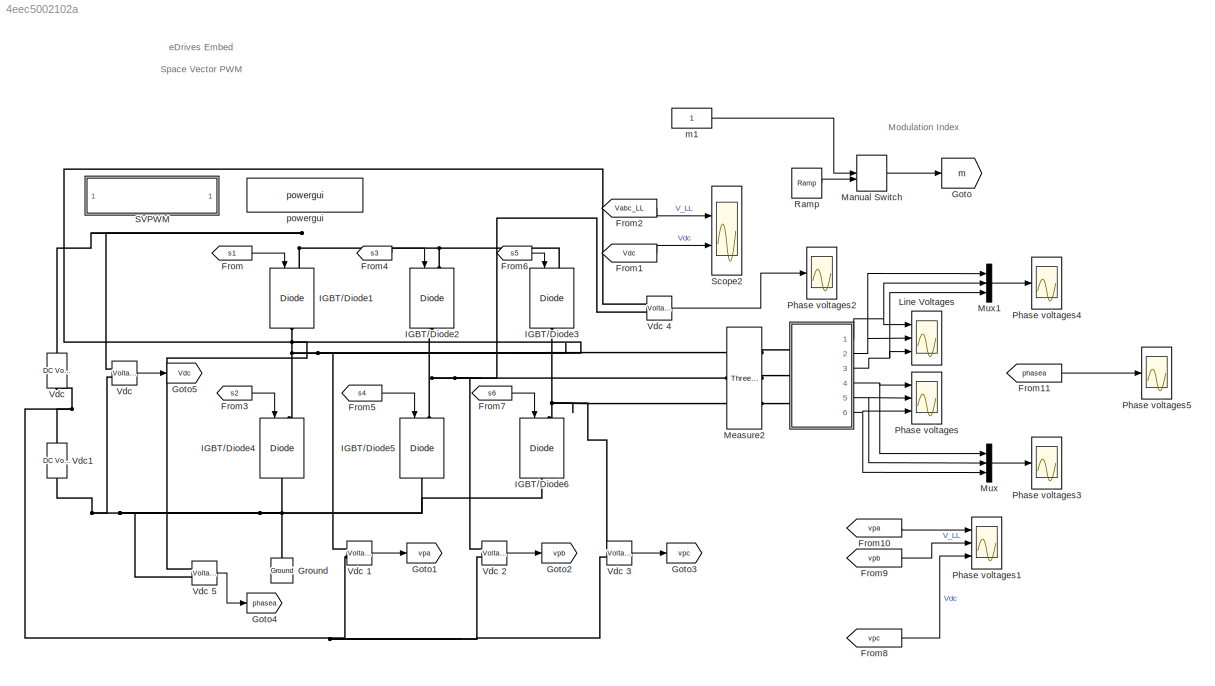
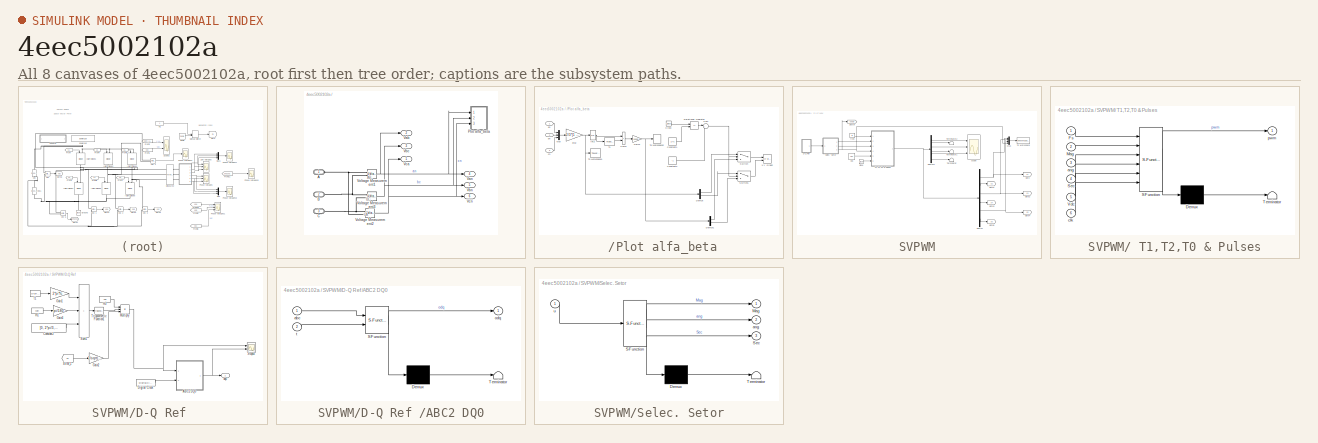
[diagram: thumbnail index - all 8 canvases of the model, root first then tree order]
MODEL slx_4eec5002102a
KIND model
CONFIG AbsTol = auto
CONFIG EnableMultiTasking = on
CONFIG FixedStep = auto
CONFIG InitFcn = Vdc=400; \nTs=2e-6; %Simulation sampling time\nfc = 50;\nfs = 10000;\nshift = 0; \nm = 1;\n\n
CONFIG MaxStep = 1e-5
CONFIG MinStep = auto
CONFIG RelTol = 1e-3
CONFIG SampleTimeConstraint = Unconstrained
CONFIG SolverName = ode45
CONFIG StartTime = 0.0
CONFIG StopFcn = clc\nfigure(1);\nplot(a(:,1),a(:,2),'-b',b(:,1),b(:,2),'-r');\naxis equal;\ngrid;\ntitle('Space Vector PWM');\n \n\n
CONFIG StopTime = 5/fc
WORKSPACE source: mxarray member
WORKSPACE Param: Simulink.Parameter (value not decoded)
WORKSPACE sw_array = [0 0 0 1 0 0 1 1 0 1 1 1 ... (126 elements, 3x7x6)]
BLOCK [SubSystem]  
  Ports = [0, 6, 0, 0, 0, 3]
  RequestExecContextInheritance = off
BLOCK [PMIOPort]  /A
  Side = Left
BLOCK [PMIOPort]  /B
  Port = 2
  Side = Left
BLOCK [PMIOPort]  /C
  Port = 3
  Side = Left
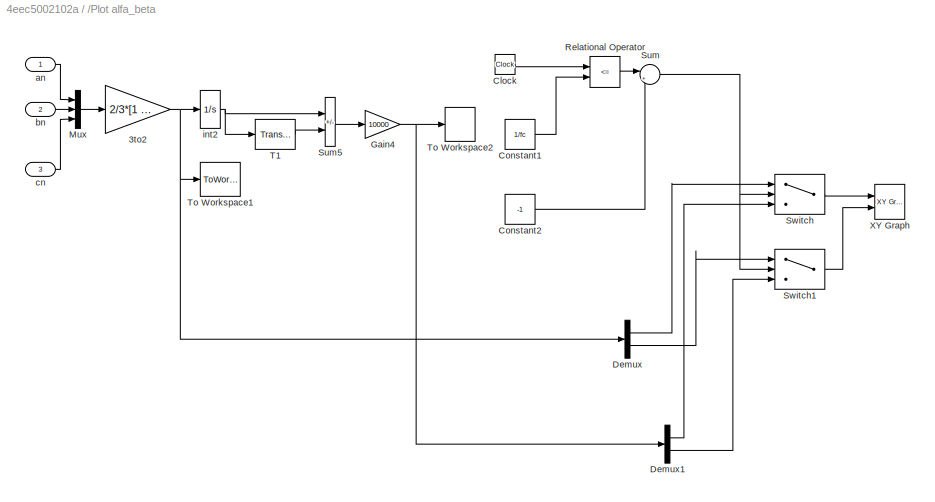
BLOCK [SubSystem]  /Plot alfa_beta
  Ports = [3]
  RequestExecContextInheritance = off
BLOCK [Gain]  /Plot alfa_beta/3to2
  Gain = 2/3*[1 -0.5 -0.5;0 sqrt(3)/2 -sqrt(3)/2]
  Multiplication = Matrix(K*u)
  OutDataTypeStr = Inherit: Same as input
  ParamDataTypeStr = Inherit: Same as input
  SaturateOnIntegerOverflow = on
BLOCK [Clock]  /Plot alfa_beta/Clock
BLOCK [Constant]  /Plot alfa_beta/Constant1
  Value = 1/fc
BLOCK [Constant]  /Plot alfa_beta/Constant2
  Value = -1
BLOCK [Demux]  /Plot alfa_beta/Demux
  Outputs = 2
  Ports = [1, 2]
BLOCK [Demux]  /Plot alfa_beta/Demux1
  Outputs = 2
  Ports = [1, 2]
BLOCK [Gain]  /Plot alfa_beta/Gain4
  Gain = 10000
  OutDataTypeStr = Inherit: Same as input
  ParamDataTypeStr = Inherit: Same as input
  SaturateOnIntegerOverflow = on
BLOCK [Mux]  /Plot alfa_beta/Mux
  DisplayOption = bar
  Inputs = 3
  Ports = [3, 1]
BLOCK [RelationalOperator]  /Plot alfa_beta/Relational Operator
  InputSameDT = off
  Operator = <=
  OutDataTypeStr = boolean
  Ports = [2, 1]
BLOCK [Sum]  /Plot alfa_beta/Sum
  Inputs = |++
  Ports = [2, 1]
BLOCK [Sum]  /Plot alfa_beta/Sum5
  IconShape = rectangular
  InputSameDT = on
  Inputs = +-
  OutDataTypeStr = Inherit: Same as first input
  Ports = [2, 1]
  SaturateOnIntegerOverflow = on
BLOCK [Switch]  /Plot alfa_beta/Switch
  InputSameDT = off
  SaturateOnIntegerOverflow = off
BLOCK [Switch]  /Plot alfa_beta/Switch1
  InputSameDT = off
  SaturateOnIntegerOverflow = off
BLOCK [TransportDelay]  /Plot alfa_beta/T1
  BufferSize = 2048
  DelayTime = 1/10000
  Ports = [1, 1]
BLOCK [ToWorkspace]  /Plot alfa_beta/To Workspace1
  Decimation = 2
  MaxDataPoints = inf
  Ports = [1]
  SampleTime = -1
  VariableName = a
BLOCK [ToWorkspace]  /Plot alfa_beta/To Workspace2
  Decimation = 2
  MaxDataPoints = inf
  Ports = [1]
  SampleTime = -1
  VariableName = b
BLOCK [Reference]  /Plot alfa_beta/XY Graph  REF=simulink/Sinks/XY Graph
  Ports = [2]
  SourceBlock = simulink/Sinks/XY Graph
  SourceProductBaseCode = SL
  SourceType = XY scope.
BLOCK [Inport]  /Plot alfa_beta/an
BLOCK [Inport]  /Plot alfa_beta/bn
  Port = 2
BLOCK [Inport]  /Plot alfa_beta/cn
  Port = 3
BLOCK [Integrator]  /Plot alfa_beta/int2
  Ports = [1, 1]
BLOCK [Outport]  /Vab
  Port = 2
BLOCK [Outport]  /Van
  Port = 4
BLOCK [Outport]  /Vbc
  Port = 3
BLOCK [Outport]  /Vbn
  Port = 5
BLOCK [Outport]  /Vca
BLOCK [Outport]  /Vcn
  Port = 6
BLOCK [Reference]  /Voltage Measurement1  REF=powerlib/Measurements/Voltage Measurement
  Ports = [0, 1, 0, 0, 0, 2]
  SourceBlock = powerlib/Measurements/Voltage Measurement
  SourceProductBaseCode = PS
  SourceType = Voltage Measurement
BLOCK [Reference]  /Voltage Measurement2  REF=powerlib/Measurements/Voltage Measurement
  Ports = [0, 1, 0, 0, 0, 2]
  SourceBlock = powerlib/Measurements/Voltage Measurement
  SourceProductBaseCode = PS
  SourceType = Voltage Measurement
BLOCK [Reference]  /Voltage Measurement3  REF=powerlib/Measurements/Voltage Measurement
  Ports = [0, 1, 0, 0, 0, 2]
  SourceBlock = powerlib/Measurements/Voltage Measurement
  SourceProductBaseCode = PS
  SourceType = Voltage Measurement
BLOCK [From] From
  CloseFcn = tagdialog Close
  GotoTag = s1
  TagVisibility = global
BLOCK [From] From1
  GotoTag = Vdc
  TagVisibility = global
BLOCK [From] From10
  GotoTag = vpa
  TagVisibility = global
BLOCK [From] From11
  GotoTag = phasea
  TagVisibility = global
BLOCK [From] From2
  GotoTag = Vabc_LL
  TagVisibility = global
BLOCK [From] From3
  CloseFcn = tagdialog Close
  GotoTag = s2
  TagVisibility = global
BLOCK [From] From4
  CloseFcn = tagdialog Close
  GotoTag = s3
  TagVisibility = global
BLOCK [From] From5
  CloseFcn = tagdialog Close
  GotoTag = s4
  TagVisibility = global
BLOCK [From] From6
  CloseFcn = tagdialog Close
  GotoTag = s5
  TagVisibility = global
BLOCK [From] From7
  CloseFcn = tagdialog Close
  GotoTag = s6
  TagVisibility = global
BLOCK [From] From8
  GotoTag = vpc
  TagVisibility = global
BLOCK [From] From9
  GotoTag = vpb
  TagVisibility = global
BLOCK [Goto] Goto
  GotoTag = m
  TagVisibility = global
BLOCK [Goto] Goto1
  GotoTag = vpa
  TagVisibility = global
BLOCK [Goto] Goto2
  GotoTag = vpb
  TagVisibility = global
BLOCK [Goto] Goto3
  GotoTag = vpc
  TagVisibility = global
BLOCK [Goto] Goto4
  GotoTag = phasea
  TagVisibility = global
BLOCK [Goto] Goto5
  GotoTag = Vdc
  TagVisibility = global
BLOCK [Reference] Ground  REF=powerlib/Elements/Ground
  NameLocation = right
  Ports = [0, 0, 0, 0, 0, 1]
  SourceBlock = powerlib/Elements/Ground
  SourceProductBaseCode = PS
  SourceType = Ground
BLOCK [Reference] IGBT//Diode1  REF=powerlib/Power
Electronics/IGBT//Diode
  NameLocation = left
  Ports = [1, 0, 0, 0, 0, 1, 1]
  SourceBlock = powerlib/Power\nElectronics/IGBT//Diode
  SourceProductBaseCode = PS
  SourceType = IGBT/Diode
BLOCK [Reference] IGBT//Diode2  REF=powerlib/Power
Electronics/IGBT//Diode
  NameLocation = left
  Ports = [1, 0, 0, 0, 0, 1, 1]
  SourceBlock = powerlib/Power\nElectronics/IGBT//Diode
  SourceProductBaseCode = PS
  SourceType = IGBT/Diode
BLOCK [Reference] IGBT//Diode3  REF=powerlib/Power
Electronics/IGBT//Diode
  NameLocation = left
  Ports = [1, 0, 0, 0, 0, 1, 1]
  SourceBlock = powerlib/Power\nElectronics/IGBT//Diode
  SourceProductBaseCode = PS
  SourceType = IGBT/Diode
BLOCK [Reference] IGBT//Diode4  REF=powerlib/Power
Electronics/IGBT//Diode
  NameLocation = left
  Ports = [1, 0, 0, 0, 0, 1, 1]
  SourceBlock = powerlib/Power\nElectronics/IGBT//Diode
  SourceProductBaseCode = PS
  SourceType = IGBT/Diode
BLOCK [Reference] IGBT//Diode5  REF=powerlib/Power
Electronics/IGBT//Diode
  NameLocation = left
  Ports = [1, 0, 0, 0, 0, 1, 1]
  SourceBlock = powerlib/Power\nElectronics/IGBT//Diode
  SourceProductBaseCode = PS
  SourceType = IGBT/Diode
BLOCK [Reference] IGBT//Diode6  REF=powerlib/Power
Electronics/IGBT//Diode
  NameLocation = left
  Ports = [1, 0, 0, 0, 0, 1, 1]
  SourceBlock = powerlib/Power\nElectronics/IGBT//Diode
  SourceProductBaseCode = PS
  SourceType = IGBT/Diode
BLOCK [Scope] Line Voltages
  Floating = off
  NameLocation = top
  NumInputPorts = 3
  Ports = [3]
  ScopeSpecificationString = Simulink.scopes.TimeScopeBlockCfg('CurrentConfiguration', extmgr.ConfigurationSet(extmgr.Configuration('Core','General UI',true),extmgr.Configuration('Core','Source UI',true),extmgr.Configuration('Sources','WiredSimulink',true,'DataLogging',true,'DataLoggingVariableName','SV','DataLoggingSaveFormat','StructureWithTime','DataLoggingMaxPoints','5000000','SampleTime','2e-6','DataLoggingLimitDataPoint...<+3125ch>
BLOCK [ManualSwitch] Manual Switch
  CurrentSetting = 0
BLOCK [Reference] Measure2  REF=powerlib/Measurements/Three-Phase
V-I Measurement
  Ports = [0, 0, 0, 0, 0, 3, 3]
  SourceBlock = powerlib/Measurements/Three-Phase\nV-I Measurement
  SourceProductBaseCode = PS
  SourceType = Three-Phase VI Measurement
BLOCK [Mux] Mux
  DisplayOption = bar
  Inputs = 3
  Ports = [3, 1]
BLOCK [Mux] Mux1
  DisplayOption = bar
  Inputs = 3
  Ports = [3, 1]
BLOCK [Scope] Phase voltages
  Floating = off
  NumInputPorts = 3
  Ports = [3]
  ScopeSpecificationString = Simulink.scopes.TimeScopeBlockCfg('CurrentConfiguration', extmgr.ConfigurationSet(extmgr.Configuration('Core','General UI',true),extmgr.Configuration('Core','Source UI',true),extmgr.Configuration('Sources','WiredSimulink',true,'DataLogging',true,'DataLoggingVariableName','V_fase','DataLoggingSaveFormat','StructureWithTime','DataLoggingMaxPoints','5000000','SampleTime','2e-6','DataLoggingLimitDataP...<+3132ch>
BLOCK [Scope] Phase voltages1
  Floating = off
  NumInputPorts = 3
  Ports = [3]
  ScopeSpecificationString = C++SS(StrPVP('Location','[5, 57, 1367, 726]'),StrPVP('Open','off'),MxPVP('AxesTitles',54,'struct(''axes1'',''%<SignalLabel>'',''axes2'',''%<SignalLabel>'',''axes3'',''%<SignalLabel>'')'),MxPVP('ScopeGraphics',57,'struct(''FigureColor'',''[0.5 0.5 0.5]'',''AxesColor'',''[0 0 0]'',''AxesTickColor'',''[1 1 1]'',''LineColors'',''[1 1 0;1 0 1;0 1 1;1 0 0;0 1 0;0 0 1]'',''LineStyles'',''-|-|-|-|-|-'',''...<+452ch>
BLOCK [Scope] Phase voltages2
  Floating = off
  NumInputPorts = 1
  Ports = [1]
  ScopeSpecificationString = C++SS(StrPVP('Location','[5, 48, 1367, 762]'),StrPVP('Open','off'),StrPVP('ZoomMode','xonly'),MxPVP('AxesTitles',54,'struct(''axes1'',''%<SignalLabel>'')'),MxPVP('ScopeGraphics',57,'struct(''FigureColor'',''[0.5 0.5 0.5]'',''AxesColor'',''[0 0 0]'',''AxesTickColor'',''[1 1 1]'',''LineColors'',''[1 1 0;1 0 1;0 1 1;1 0 0;0 1 0;0 0 1]'',''LineStyles'',''-|-|-|-|-|-'',''LineWidths'',''[0.5 0.5 0.5 0.5...<+399ch>
BLOCK [Scope] Phase voltages3
  Floating = off
  NumInputPorts = 1
  Ports = [1]
  ScopeSpecificationString = C++SS(StrPVP('Location','[5, 48, 1367, 762]'),StrPVP('Open','off'),StrPVP('ZoomMode','xonly'),MxPVP('AxesTitles',54,'struct(''axes1'',''%<SignalLabel>'')'),MxPVP('ScopeGraphics',57,'struct(''FigureColor'',''[0.5 0.5 0.5]'',''AxesColor'',''[0 0 0]'',''AxesTickColor'',''[1 1 1]'',''LineColors'',''[1 1 0;1 0 1;0 1 1;1 0 0;0 1 0;0 0 1]'',''LineStyles'',''-|-|-|-|-|-'',''LineWidths'',''[0.5 0.5 0.5 0.5...<+403ch>
BLOCK [Scope] Phase voltages4
  Floating = off
  NumInputPorts = 1
  Ports = [1]
  ScopeSpecificationString = Simulink.scopes.TimeScopeBlockCfg('CurrentConfiguration', extmgr.ConfigurationSet(extmgr.Configuration('Core','General UI',true),extmgr.Configuration('Core','Source UI',true),extmgr.Configuration('Sources','WiredSimulink',true,'DataLogging',true,'DataLoggingVariableName','V_fase3','DataLoggingSaveFormat','StructureWithTime','DataLoggingMaxPoints','5000000','SampleTime','2e-6','DataLoggingLimitData...<+1848ch>
BLOCK [Scope] Phase voltages5
  Floating = off
  NumInputPorts = 1
  Ports = [1]
  ScopeSpecificationString = C++SS(StrPVP('Location','[5, 48, 1367, 762]'),StrPVP('Open','off'),MxPVP('AxesTitles',54,'struct(''axes1'',''%<SignalLabel>'')'),MxPVP('ScopeGraphics',57,'struct(''FigureColor'',''[0.5 0.5 0.5]'',''AxesColor'',''[0 0 0]'',''AxesTickColor'',''[1 1 1]'',''LineColors'',''[1 1 0;1 0 1;0 1 1;1 0 0;0 1 0;0 0 1]'',''LineStyles'',''-|-|-|-|-|-'',''LineWidths'',''[0.5 0.5 0.5 0.5 0.5 0.5]'',''MarkerStyles'...<+376ch>
BLOCK [Reference] Ramp  REF=simulink/Sources/Ramp
  Ports = [0, 1]
  SourceBlock = simulink/Sources/Ramp
  SourceProductBaseCode = SL
  SourceType = Ramp
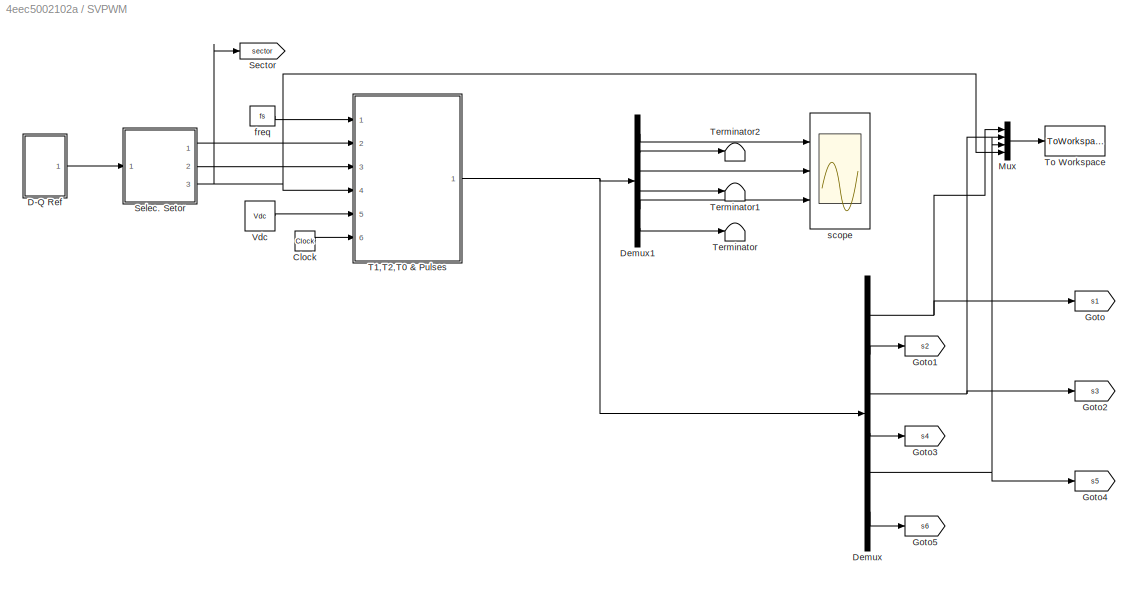
BLOCK [SubSystem] SVPWM
  Ports = []
  RequestExecContextInheritance = off
BLOCK [SubSystem] SVPWM/ T1,T2,T0 & Pulses
  ErrorFcn = Stateflow.Translate.translate
  PermitHierarchicalResolution = ExplicitOnly
  Ports = [6, 1]
  RequestExecContextInheritance = off
  SFBlockType = MATLAB Function
  TreatAsAtomicUnit = on
BLOCK [Demux] SVPWM/ T1,T2,T0 & Pulses/ Demux 
  Outputs = 1
  Ports = [1, 1]
BLOCK [S-Function] SVPWM/ T1,T2,T0 & Pulses/ SFunction 
  EnableBusSupport = on
  FunctionName = sf_sfun
  PortCounts = [6 2]
  Ports = [6, 2]
  SFcnIsStateOwnerBlock = off
  SFunctionDeploymentMode = off
  Tag = Stateflow S-Function 2
BLOCK [Terminator] SVPWM/ T1,T2,T0 & Pulses/ Terminator 
BLOCK [Inport] SVPWM/ T1,T2,T0 & Pulses/Fs
BLOCK [Inport] SVPWM/ T1,T2,T0 & Pulses/Mag
  Port = 2
BLOCK [Inport] SVPWM/ T1,T2,T0 & Pulses/Sec
  Port = 4
BLOCK [Inport] SVPWM/ T1,T2,T0 & Pulses/Vdc
  Port = 5
BLOCK [Inport] SVPWM/ T1,T2,T0 & Pulses/ang
  Port = 3
BLOCK [Inport] SVPWM/ T1,T2,T0 & Pulses/clk
  Port = 6
BLOCK [Outport] SVPWM/ T1,T2,T0 & Pulses/pwm
BLOCK [Constant] SVPWM/ freq
  NameLocation = top
  Value = fs
BLOCK [Clock] SVPWM/Clock
  Decimation = 100
BLOCK [SubSystem] SVPWM/D-Q Ref 
  Ports = [0, 1]
  RequestExecContextInheritance = off
BLOCK [SubSystem] SVPWM/D-Q Ref /ABC2 DQ0
  ErrorFcn = Stateflow.Translate.translate
  PermitHierarchicalResolution = ExplicitOnly
  Ports = [2, 1]
  RequestExecContextInheritance = off
  SFBlockType = MATLAB Function
  TreatAsAtomicUnit = on
BLOCK [Demux] SVPWM/D-Q Ref /ABC2 DQ0/ Demux 
  Outputs = 1
  Ports = [1, 1]
BLOCK [S-Function] SVPWM/D-Q Ref /ABC2 DQ0/ SFunction 
  EnableBusSupport = on
  FunctionName = sf_sfun
  PortCounts = [2 2]
  Ports = [2, 2]
  SFcnIsStateOwnerBlock = off
  SFunctionDeploymentMode = off
  Tag = Stateflow S-Function 4
BLOCK [Terminator] SVPWM/D-Q Ref /ABC2 DQ0/ Terminator 
BLOCK [Inport] SVPWM/D-Q Ref /ABC2 DQ0/abc
BLOCK [Outport] SVPWM/D-Q Ref /ABC2 DQ0/odq
BLOCK [Inport] SVPWM/D-Q Ref /ABC2 DQ0/t
  Port = 2
BLOCK [Constant] SVPWM/D-Q Ref /Constant2
  SampleTime = -1
  Value = [0, 2*pi/3, 4*pi/3]
BLOCK [DigitalClock] SVPWM/D-Q Ref /Digital Clock
BLOCK [Gain] SVPWM/D-Q Ref /Gain1
  Gain = 2*pi*fc
  OutDataTypeStr = Inherit: Same as input
  ParamDataTypeStr = Inherit: Same as input
  SaturateOnIntegerOverflow = on
BLOCK [Gain] SVPWM/D-Q Ref /Gain2
  Gain = 1/sqrt(3)
  OutDataTypeStr = Inherit: Same as input
  ParamDataTypeStr = Inherit: Same as input
  SaturateOnIntegerOverflow = on
BLOCK [Gain] SVPWM/D-Q Ref /Gain3
  Gain = pi/180
  OutDataTypeStr = Inherit: Same as input
  ParamDataTypeStr = Inherit: Same as input
  SaturateOnIntegerOverflow = on
BLOCK [Product] SVPWM/D-Q Ref /Multiply
  Inputs = ***
  Ports = [3, 1]
BLOCK [From] SVPWM/D-Q Ref /SVM_1
  GotoTag = m
  TagVisibility = global
BLOCK [Scope] SVPWM/D-Q Ref /Scope2
  Floating = off
  NumInputPorts = 2
  Ports = [2]
  ScopeSpecificationString = C++SS(StrPVP('Location','[5, 49, 1367, 727]'),StrPVP('Open','off'),StrPVP('ZoomMode','xonly'),MxPVP('AxesTitles',54,'struct(''axes1'',''%<SignalLabel>'',''axes2'',''%<SignalLabel>'')'),MxPVP('ScopeGraphics',57,'struct(''FigureColor'',''[0.5 0.5 0.5]'',''AxesColor'',''[0 0 0]'',''AxesTickColor'',''[1 1 1]'',''LineColors'',''[1 1 0;1 0 1;0 1 1;1 0 0;0 1 0;0 0 1]'',''LineStyles'',''-|-|-|-|-|-'',''Li...<+370ch>
BLOCK [Sum] SVPWM/D-Q Ref /Sum1
  IconShape = rectangular
  InputSameDT = on
  Inputs = +++
  OutDataTypeStr = Inherit: Same as first input
  Ports = [3, 1]
  SaturateOnIntegerOverflow = on
BLOCK [Trigonometry] SVPWM/D-Q Ref /Trigonometric Function1
  Ports = [1, 1]
BLOCK [Outport] SVPWM/D-Q Ref /dq0
BLOCK [Constant] SVPWM/D-Q Ref /m1
  SampleTime = Ts
  Value = shift
BLOCK [Constant] SVPWM/D-Q Ref /m3
  SampleTime = 2e-6
  Value = Vdc
BLOCK [DigitalClock] SVPWM/D-Q Ref /t1
  SampleTime = Ts
BLOCK [Demux] SVPWM/Demux
  Outputs = 6
  Ports = [1, 6]
BLOCK [Demux] SVPWM/Demux1
  Outputs = 6
  Ports = [1, 6]
BLOCK [Goto] SVPWM/Goto
  GotoTag = s1
  TagVisibility = global
BLOCK [Goto] SVPWM/Goto1
  GotoTag = s2
  TagVisibility = global
BLOCK [Goto] SVPWM/Goto2
  GotoTag = s3
  TagVisibility = global
BLOCK [Goto] SVPWM/Goto3
  GotoTag = s4
  TagVisibility = global
BLOCK [Goto] SVPWM/Goto4
  GotoTag = s5
  TagVisibility = global
BLOCK [Goto] SVPWM/Goto5
  GotoTag = s6
  TagVisibility = global
BLOCK [Mux] SVPWM/Mux
  DisplayOption = bar
  Ports = [4, 1]
BLOCK [Goto] SVPWM/Sector
  GotoTag = sector
  TagVisibility = global
BLOCK [SubSystem] SVPWM/Selec. Setor
  ErrorFcn = Stateflow.Translate.translate
  PermitHierarchicalResolution = ExplicitOnly
  Ports = [1, 3]
  RequestExecContextInheritance = off
  SFBlockType = MATLAB Function
  TreatAsAtomicUnit = on
BLOCK [Demux] SVPWM/Selec. Setor/ Demux 
  Outputs = 1
  Ports = [1, 1]
BLOCK [S-Function] SVPWM/Selec. Setor/ SFunction 
  EnableBusSupport = on
  FunctionName = sf_sfun
  PortCounts = [1 4]
  Ports = [1, 4]
  SFcnIsStateOwnerBlock = off
  SFunctionDeploymentMode = off
  Tag = Stateflow S-Function 1
BLOCK [Terminator] SVPWM/Selec. Setor/ Terminator 
BLOCK [Outport] SVPWM/Selec. Setor/Mag
BLOCK [Outport] SVPWM/Selec. Setor/Sec
  Port = 3
BLOCK [Outport] SVPWM/Selec. Setor/ang
  Port = 2
BLOCK [Inport] SVPWM/Selec. Setor/u
BLOCK [Terminator] SVPWM/Terminator
BLOCK [Terminator] SVPWM/Terminator1
BLOCK [Terminator] SVPWM/Terminator2
BLOCK [ToWorkspace] SVPWM/To Workspace
  MaxDataPoints = inf
  Ports = [1]
  SampleTime = -1
  VariableName = vector
BLOCK [Constant] SVPWM/Vdc
  Value = Vdc
BLOCK [Scope] SVPWM/scope
  Floating = off
  NumInputPorts = 3
  Ports = [3]
  ScopeSpecificationString = C++SS(StrPVP('Location','[509, 57, 1190, 726]'),StrPVP('Open','off'),MxPVP('AxesTitles',54,'struct(''axes1'',''%<SignalLabel>'',''axes2'',''%<SignalLabel>'',''axes3'',''%<SignalLabel>'')'),MxPVP('ScopeGraphics',57,'struct(''FigureColor'',''[0.5 0.5 0.5]'',''AxesColor'',''[0 0 0]'',''AxesTickColor'',''[1 1 1]'',''LineColors'',''[1 1 0;1 0 1;0 1 1;1 0 0;0 1 0;0 0 1]'',''LineStyles'',''-|-|-|-|-|-'',...<+379ch>
BLOCK [Scope] Scope2
  Floating = off
  NumInputPorts = 2
  Ports = [2]
  ScopeSpecificationString = C++SS(StrPVP('Location','[5, 48, 1367, 762]'),StrPVP('Open','off'),StrPVP('ZoomMode','xonly'),MxPVP('AxesTitles',54,'struct(''axes1'',''%<SignalLabel>'',''axes2'',''%<SignalLabel>'')'),MxPVP('ScopeGraphics',57,'struct(''FigureColor'',''[0.5 0.5 0.5]'',''AxesColor'',''[0 0 0]'',''AxesTickColor'',''[1 1 1]'',''LineColors'',''[1 1 0;1 0 1;0 1 1;1 0 0;0 1 0;0 0 1]'',''LineStyles'',''-|-|-|-|-|-'',''Li...<+434ch>
BLOCK [Reference] Vdc  REF=powerlib/Electrical
Sources/DC Voltage Source
  NameLocation = left
  Ports = [0, 0, 0, 0, 0, 1, 1]
  SourceBlock = powerlib/Electrical\nSources/DC Voltage Source
  SourceProductBaseCode = PS
  SourceType = DC Voltage Source
BLOCK [Reference] Vdc   REF=powerlib/Measurements/Voltage Measurement
  AttributesFormatString = \n
  NameLocation = top
  Ports = [0, 1, 0, 0, 0, 2]
  SourceBlock = powerlib/Measurements/Voltage Measurement
  SourceProductBaseCode = PS
  SourceType = Voltage Measurement
  Tag = PoWeRsYsTeMmEaSuReMeNt
BLOCK [Reference] Vdc 1  REF=powerlib/Measurements/Voltage Measurement
  AttributesFormatString = \n
  NameLocation = top
  Ports = [0, 1, 0, 0, 0, 2]
  SourceBlock = powerlib/Measurements/Voltage Measurement
  SourceProductBaseCode = PS
  SourceType = Voltage Measurement
  Tag = PoWeRsYsTeMmEaSuReMeNt
BLOCK [Reference] Vdc 2  REF=powerlib/Measurements/Voltage Measurement
  AttributesFormatString = \n
  NameLocation = top
  Ports = [0, 1, 0, 0, 0, 2]
  SourceBlock = powerlib/Measurements/Voltage Measurement
  SourceProductBaseCode = PS
  SourceType = Voltage Measurement
  Tag = PoWeRsYsTeMmEaSuReMeNt
BLOCK [Reference] Vdc 3  REF=powerlib/Measurements/Voltage Measurement
  AttributesFormatString = \n
  NameLocation = top
  Ports = [0, 1, 0, 0, 0, 2]
  SourceBlock = powerlib/Measurements/Voltage Measurement
  SourceProductBaseCode = PS
  SourceType = Voltage Measurement
  Tag = PoWeRsYsTeMmEaSuReMeNt
BLOCK [Reference] Vdc 4  REF=powerlib/Measurements/Voltage Measurement
  AttributesFormatString = \n
  NameLocation = top
  Ports = [0, 1, 0, 0, 0, 2]
  SourceBlock = powerlib/Measurements/Voltage Measurement
  SourceProductBaseCode = PS
  SourceType = Voltage Measurement
  Tag = PoWeRsYsTeMmEaSuReMeNt
BLOCK [Reference] Vdc 5  REF=powerlib/Measurements/Voltage Measurement
  AttributesFormatString = \n
  NameLocation = top
  Ports = [0, 1, 0, 0, 0, 2]
  SourceBlock = powerlib/Measurements/Voltage Measurement
  SourceProductBaseCode = PS
  SourceType = Voltage Measurement
  Tag = PoWeRsYsTeMmEaSuReMeNt
BLOCK [Reference] Vdc1  REF=powerlib/Electrical
Sources/DC Voltage Source
  NameLocation = left
  Ports = [0, 0, 0, 0, 0, 1, 1]
  SourceBlock = powerlib/Electrical\nSources/DC Voltage Source
  SourceProductBaseCode = PS
  SourceType = DC Voltage Source
BLOCK [Constant] m1
  SampleTime = Ts
BLOCK [Reference] powergui  REF=powerlib/powergui
  Ports = []
  Priority = 1
  SourceBlock = powerlib/powergui
  SourceProductBaseCode = PS
  SourceType = PSB option menu block
ANNOTATION (root): eDrives Embed Space Vector PWM
ANNOTATION (root): Modulation Index
ANNOTATION  : AB
ANNOTATION  : BC
ANNOTATION  : CA
NET  /Plot alfa_beta/3to2:1 ->  /Plot alfa_beta/Demux:1,  /Plot alfa_beta/To Workspace1:1,  /Plot alfa_beta/int2:1
LINE  /Plot alfa_beta/Clock:1 ->  /Plot alfa_beta/Relational Operator:1
LINE  /Plot alfa_beta/Constant1:1 ->  /Plot alfa_beta/Relational Operator:2
LINE  /Plot alfa_beta/Constant2:1 ->  /Plot alfa_beta/Sum:2
LINE  /Plot alfa_beta/Demux1:1 ->  /Plot alfa_beta/Switch:3
LINE  /Plot alfa_beta/Demux1:2 ->  /Plot alfa_beta/Switch1:3
LINE  /Plot alfa_beta/Demux:1 ->  /Plot alfa_beta/Switch:1
LINE  /Plot alfa_beta/Demux:2 ->  /Plot alfa_beta/Switch1:1
NET  /Plot alfa_beta/Gain4:1 ->  /Plot alfa_beta/Demux1:1,  /Plot alfa_beta/To Workspace2:1
LINE  /Plot alfa_beta/Mux:1 ->  /Plot alfa_beta/3to2:1
LINE  /Plot alfa_beta/Relational Operator:1 ->  /Plot alfa_beta/Sum:1
LINE  /Plot alfa_beta/Sum5:1 ->  /Plot alfa_beta/Gain4:1
NET  /Plot alfa_beta/Sum:1 ->  /Plot alfa_beta/Switch1:2,  /Plot alfa_beta/Switch:2
LINE  /Plot alfa_beta/Switch1:1 ->  /Plot alfa_beta/XY Graph:2
LINE  /Plot alfa_beta/Switch:1 ->  /Plot alfa_beta/XY Graph:1
LINE  /Plot alfa_beta/T1:1 ->  /Plot alfa_beta/Sum5:2
LINE  /Plot alfa_beta/an:1 ->  /Plot alfa_beta/Mux:1
LINE  /Plot alfa_beta/bn:1 ->  /Plot alfa_beta/Mux:2
LINE  /Plot alfa_beta/cn:1 ->  /Plot alfa_beta/Mux:3
NET  /Plot alfa_beta/int2:1 ->  /Plot alfa_beta/Sum5:1,  /Plot alfa_beta/T1:1
NET  /Voltage Measurement1:1 ->  /Plot alfa_beta:1,  /Vab:1,  /Van:1
NET  /Voltage Measurement2:1 ->  /Plot alfa_beta:3,  /Vca:1,  /Vcn:1
NET  /Voltage Measurement3:1 ->  /Plot alfa_beta:2,  /Vbc:1,  /Vbn:1
NET  :1 -> Line Voltages:1, Mux1:2
NET  :2 -> Line Voltages:2, Mux1:1
NET  :3 -> Line Voltages:3, Mux1:3
NET  :4 -> Mux:1, Phase voltages:1
NET  :5 -> Mux:2, Phase voltages:2
NET  :6 -> Mux:3, Phase voltages:3
LINE From10:1 -> Phase voltages1:1
LINE From11:1 -> Phase voltages5:1
LINE From1:1 -> Scope2:2
LINE From2:1 -> Scope2:1
LINE From3:1 -> IGBT//Diode4:1
LINE From4:1 -> IGBT//Diode2:1
LINE From5:1 -> IGBT//Diode5:1
LINE From6:1 -> IGBT//Diode3:1
LINE From7:1 -> IGBT//Diode6:1
LINE From8:1 -> Phase voltages1:3
LINE From9:1 -> Phase voltages1:2
LINE From:1 -> IGBT//Diode1:1
LINE Manual Switch:1 -> Goto:1
LINE Mux1:1 -> Phase voltages4:1
LINE Mux:1 -> Phase voltages3:1
LINE Ramp:1 -> Manual Switch:2
NET SVPWM/ T1,T2,T0 & Pulses:1 -> SVPWM/Demux1:1, SVPWM/Demux:1
LINE SVPWM/ freq:1 -> SVPWM/ T1,T2,T0 & Pulses:1
LINE SVPWM/Clock:1 -> SVPWM/ T1,T2,T0 & Pulses:6
NET SVPWM/D-Q Ref /ABC2 DQ0:1 -> SVPWM/D-Q Ref /Scope2:2, SVPWM/D-Q Ref /dq0:1
LINE SVPWM/D-Q Ref /Constant2:1 -> SVPWM/D-Q Ref /Sum1:3
LINE SVPWM/D-Q Ref /Digital Clock:1 -> SVPWM/D-Q Ref /ABC2 DQ0:2
LINE SVPWM/D-Q Ref /Gain1:1 -> SVPWM/D-Q Ref /Sum1:1
LINE SVPWM/D-Q Ref /Gain2:1 -> SVPWM/D-Q Ref /Multiply:3
LINE SVPWM/D-Q Ref /Gain3:1 -> SVPWM/D-Q Ref /Sum1:2
NET SVPWM/D-Q Ref /Multiply:1 -> SVPWM/D-Q Ref /ABC2 DQ0:1, SVPWM/D-Q Ref /Scope2:1
LINE SVPWM/D-Q Ref /SVM_1:1 -> SVPWM/D-Q Ref /Gain2:1
LINE SVPWM/D-Q Ref /Sum1:1 -> SVPWM/D-Q Ref /Trigonometric Function1:1
LINE SVPWM/D-Q Ref /Trigonometric Function1:1 -> SVPWM/D-Q Ref /Multiply:2
LINE SVPWM/D-Q Ref /m1:1 -> SVPWM/D-Q Ref /Gain3:1
LINE SVPWM/D-Q Ref /m3:1 -> SVPWM/D-Q Ref /Multiply:1
LINE SVPWM/D-Q Ref /t1:1 -> SVPWM/D-Q Ref /Gain1:1
LINE SVPWM/D-Q Ref :1 -> SVPWM/Selec. Setor:1
LINE SVPWM/Demux1:1 -> SVPWM/scope:1
LINE SVPWM/Demux1:2 -> SVPWM/Terminator2:1
LINE SVPWM/Demux1:3 -> SVPWM/scope:2
LINE SVPWM/Demux1:4 -> SVPWM/Terminator1:1
LINE SVPWM/Demux1:5 -> SVPWM/scope:3
LINE SVPWM/Demux1:6 -> SVPWM/Terminator:1
NET SVPWM/Demux:1 -> SVPWM/Goto:1, SVPWM/Mux:1
LINE SVPWM/Demux:2 -> SVPWM/Goto1:1
NET SVPWM/Demux:3 -> SVPWM/Goto2:1, SVPWM/Mux:2
LINE SVPWM/Demux:4 -> SVPWM/Goto3:1
NET SVPWM/Demux:5 -> SVPWM/Goto4:1, SVPWM/Mux:3
LINE SVPWM/Demux:6 -> SVPWM/Goto5:1
LINE SVPWM/Mux:1 -> SVPWM/To Workspace:1
LINE SVPWM/Selec. Setor:1 -> SVPWM/ T1,T2,T0 & Pulses:2
LINE SVPWM/Selec. Setor:2 -> SVPWM/ T1,T2,T0 & Pulses:3
NET SVPWM/Selec. Setor:3 -> SVPWM/ T1,T2,T0 & Pulses:4, SVPWM/Mux:4, SVPWM/Sector:1
LINE SVPWM/Vdc:1 -> SVPWM/ T1,T2,T0 & Pulses:5
LINE Vdc 1:1 -> Goto1:1
LINE Vdc 2:1 -> Goto2:1
LINE Vdc 3:1 -> Goto3:1
LINE Vdc 4:1 -> Phase voltages2:1
LINE Vdc 5:1 -> Goto4:1
LINE Vdc :1 -> Goto5:1
LINE m1:1 -> Manual Switch:1
PNET net1:  /A:RConn1 --  /Voltage Measurement1:LConn1 --  /Voltage Measurement2:LConn2
PNET net2:  /B:RConn1 --  /Voltage Measurement1:LConn2 --  /Voltage Measurement3:LConn1
PNET net3:  /C:RConn1 --  /Voltage Measurement2:LConn1 --  /Voltage Measurement3:LConn2
PLINE  :LConn1 -- Measure2:RConn1
PLINE  :LConn2 -- Measure2:RConn2
PLINE  :LConn3 -- Measure2:RConn3
PNET net4: Ground:LConn1 -- IGBT//Diode4:RConn1 -- IGBT//Diode5:RConn1 -- IGBT//Diode6:RConn1 -- Vdc 5:LConn2 -- Vdc :LConn2 -- Vdc1:LConn1
PNET net5: IGBT//Diode1:LConn1 -- IGBT//Diode2:LConn1 -- IGBT//Diode3:LConn1 -- Vdc :LConn1 -- Vdc:RConn1
PNET net6: IGBT//Diode1:RConn1 -- IGBT//Diode4:LConn1 -- Measure2:LConn1 -- Vdc 1:LConn1 -- Vdc 4:LConn1 -- Vdc 5:LConn1
PNET net7: IGBT//Diode2:RConn1 -- IGBT//Diode5:LConn1 -- Measure2:LConn2 -- Vdc 2:LConn1 -- Vdc 4:LConn2
PNET net8: IGBT//Diode3:RConn1 -- IGBT//Diode6:LConn1 -- Measure2:LConn3 -- Vdc 3:LConn1
PNET net9: Vdc 1:LConn2 -- Vdc 2:LConn2 -- Vdc 3:LConn2 -- Vdc1:RConn1 -- Vdc:LConn1
note: NET lines group one-source signal fan-out (src -> all destinations, sorted); 1:1 wires keep LINE; PNET lines group multi-terminal physical nets as a canonical sorted terminal list (undirected conserving connections); 2-terminal nets keep the pairwise PLINE form
CHART SVPWM/Selec. Setor states=1 transitions=1
  STATE_LABEL 'eML_blk_kernel()'
  STATE_LABEL 'SCRIPT:\nfunction [Mag,ang,Sec] = fcn(u)\n\ncomplexo=u(2)+ i* u(3);\nMag=abs(complexo);\nang=atan2(imag(complexo),real(complexo));\nalpha=ang*180/pi;\n\nSec = (alpha>0 & alpha<=60)*1+ (alpha>60 & alpha<=120)*2  + (alpha>120 & alpha<=180)*3 ...\n  +(alpha>-180 & alpha<-120)*4+ (alpha>-120 & alpha<=-60)*5 + (alpha>-60 & alpha<=0)*6;\n\n\n\n\n\n'
CHART SVPWM/ T1,T2,T0
& Pulses states=1 transitions=1
  STATE_LABEL 'eML_blk_kernel()'
  STATE_LABEL 'SCRIPT:\n\n% -----------------------------------------------------------------------    \n%      eDrives Embed\n%      Space Vector PWM\n\n% ------------------------------------------------------------------------\n\n% T1,T2,T0,timet\nfunction pwm  = fcn(Fs,Mag,ang,Sec,Vdc,clk)\n\n% Time synchronization with the simulink clock. \nt=clk;\n\n% Vdc at workspace\n% General expression for the calculation of T1, T2 an...<+1410ch>'
CHART SVPWM/D-Q Ref 
/ABC2 DQ0 states=1 transitions=1
  STATE_LABEL 'eML_blk_kernel()'
  STATE_LABEL 'SCRIPT:\nfunction odq = fcn(abc,t)\n\ndetla=2*pi*50*(t-5e-6) ; % f=50hz\na=abc(1);\nb=abc(2);\nc=abc(3);\nT=[1/2          1/2                1/2;...\n   cos(detla) cos(detla-2*pi/3)  cos(detla+2*pi/3);...\n   sin(detla) sin(detla-2*pi/3)  sin(detla+2*pi/3)];\n\nU=[a;b;c];\n\n\nodq =2/3* T * U ;'
CHART  states=0 transitions=0
CHART  states=0 transitions=0
CHART  states=0 transitions=0
